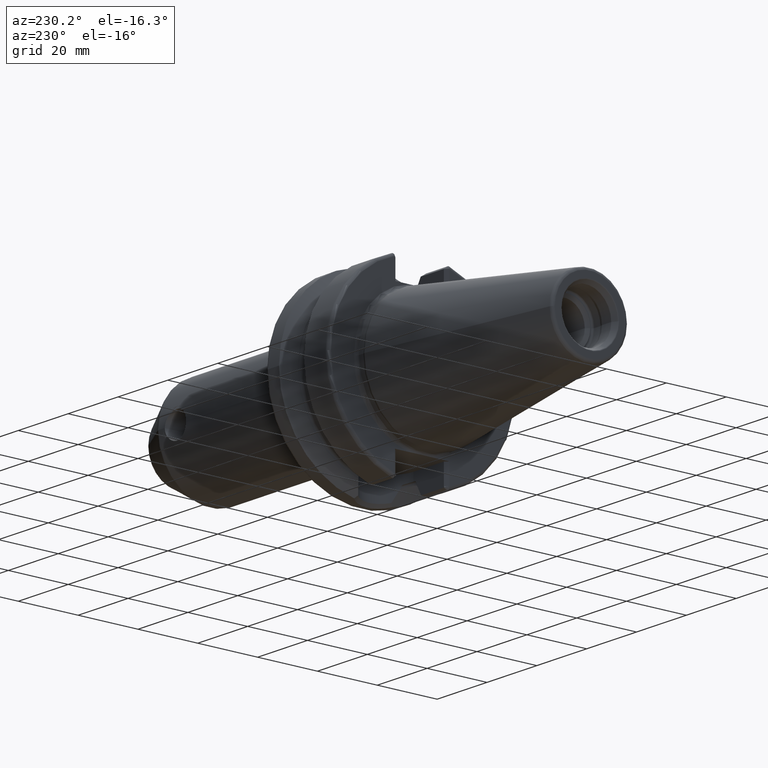
[diagram: clean part render]
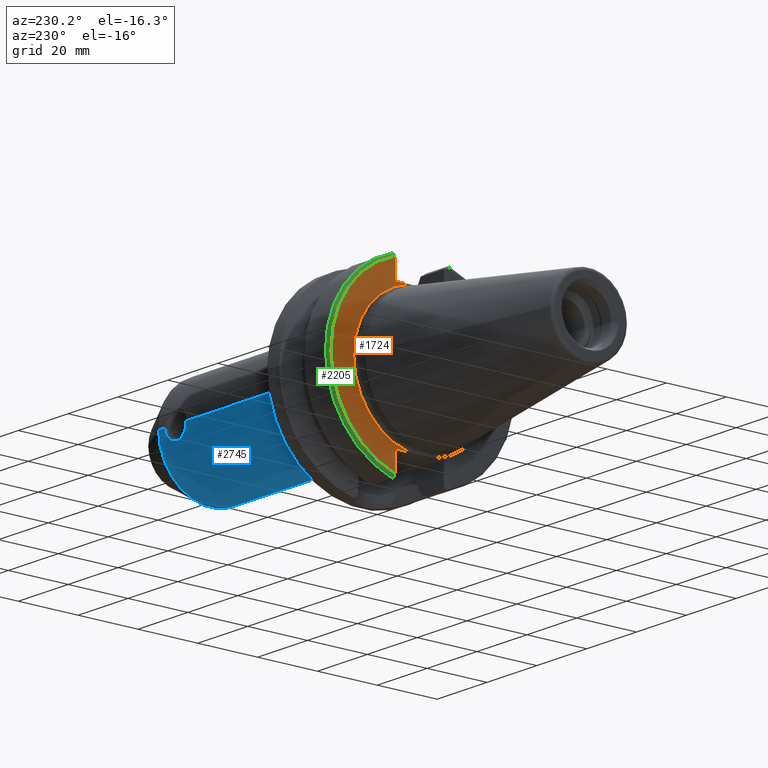
[diagram: same view with three faces highlighted in distinct colors, each labeled with its STEP entity id]
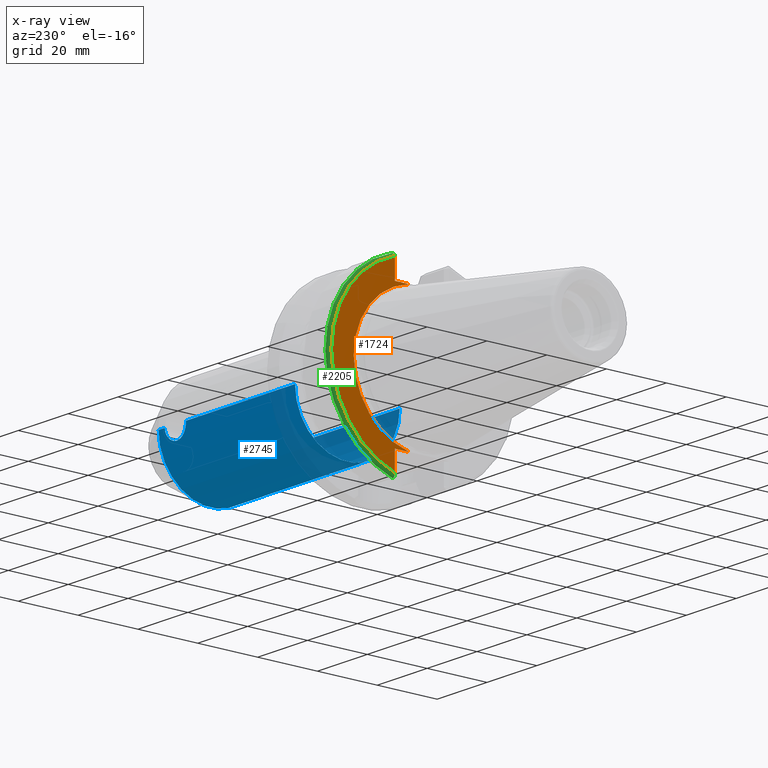
[diagram: x-ray of the same camera — body ghosted, the three highlighted faces saturated]
A machine part, auxiliary view with three faces highlighted in distinct colors.
The next image is the same camera in x-ray (body ghosted, the three faces saturated) — at least one of them is partly hidden behind the body in this view.
Their STEP definitions:

[orange] entity #1724 — the highlighted planar face has unit normal (1, 0, 0).
#96=CARTESIAN_POINT('',(2.E0,0.E0,0.E0));
#97=DIRECTION('',(-1.E0,0.E0,0.E0));
#98=DIRECTION('',(0.E0,1.E0,0.E0));
#99=AXIS2_PLACEMENT_3D('',#96,#97,#98);
#127=DIRECTION('',(2.137863157138E-6,2.138092596513E-6,9.999999999954E-1));
#128=VECTOR('',#127,6.649288203884E0);
#129=CARTESIAN_POINT('',(1.999985784732E0,9.094985783206E0,-2.909928820385E1));
#130=LINE('',#129,#128);
#131=DIRECTION('',(-4.462834027332E-6,-4.463945839096E-6,9.999999999801E-1));
#132=VECTOR('',#131,6.649296399125E0);
#133=CARTESIAN_POINT('',(2.E0,9.095E0,2.245E1));
#134=LINE('',#133,#132);
#592=CARTESIAN_POINT('',(2.E0,0.E0,0.E0));
#593=DIRECTION('',(-1.E0,0.E0,0.E0));
#594=DIRECTION('',(0.E0,2.983190614061E-1,9.544662055839E-1));
#595=AXIS2_PLACEMENT_3D('',#592,#593,#594);
#688=DIRECTION('',(0.E0,1.E0,0.E0));
#689=VECTOR('',#688,4.706022328605E0);
#690=CARTESIAN_POINT('',(2.E0,4.388977671395E0,2.245E1));
#691=LINE('',#690,#689);
#709=CARTESIAN_POINT('',(2.E0,0.E0,0.E0));
#710=DIRECTION('',(1.E0,0.E0,0.E0));
#711=DIRECTION('',(0.E0,1.E0,0.E0));
#712=AXIS2_PLACEMENT_3D('',#709,#710,#711);
#746=DIRECTION('',(0.E0,-1.E0,0.E0));
#747=VECTOR('',#746,4.706022328605E0);
#748=CARTESIAN_POINT('',(2.E0,9.095E0,-2.245E1));
#749=LINE('',#748,#747);
#1368=CARTESIAN_POINT('',(2.E0,2.2875E1,0.E0));
#1370=VERTEX_POINT('',#1368);
#1438=CARTESIAN_POINT('',(2.E0,4.388977671395E0,2.245E1));
#1439=VERTEX_POINT('',#1438);
#1446=CARTESIAN_POINT('',(2.E0,4.388977671395E0,-2.245E1));
#1447=VERTEX_POINT('',#1446);
#1484=CARTESIAN_POINT('',(2.E0,9.095027762300E0,2.909928051090E1));
#1486=VERTEX_POINT('',#1484);
#1488=CARTESIAN_POINT('',(2.E0,9.095E0,2.245E1));
#1489=VERTEX_POINT('',#1488);
#1498=CARTESIAN_POINT('',(1.999985784732E0,9.094985783206E0,-2.909928820385E1));
#1499=CARTESIAN_POINT('',(2.E0,9.095E0,-2.245E1));
#1500=VERTEX_POINT('',#1498);
#1501=VERTEX_POINT('',#1499);
#1704=CARTESIAN_POINT('',(2.E0,0.E0,0.E0));
#1705=DIRECTION('',(1.E0,0.E0,0.E0));
#1706=DIRECTION('',(0.E0,-1.E0,0.E0));
#1707=AXIS2_PLACEMENT_3D('',#1704,#1705,#1706);
#1708=PLANE('',#1707);
#1710=ORIENTED_EDGE('',*,*,#1709,.F.);
#1712=ORIENTED_EDGE('',*,*,#1711,.F.);
#1714=ORIENTED_EDGE('',*,*,#1713,.F.);
#1716=ORIENTED_EDGE('',*,*,#1715,.F.);
#1718=ORIENTED_EDGE('',*,*,#1717,.F.);
#1719=ORIENTED_EDGE('',*,*,#1690,.T.);
#1721=ORIENTED_EDGE('',*,*,#1720,.F.);
#1722=EDGE_LOOP('',(#1710,#1712,#1714,#1716,#1718,#1719,#1721));
#1723=FACE_OUTER_BOUND('',#1722,.F.);
#1724=ADVANCED_FACE('',(#1723),#1708,.F.);
#100=CIRCLE('',#99,2.2875E1);
#596=CIRCLE('',#595,3.04875E1);
#713=CIRCLE('',#712,2.2875E1);
#1690=EDGE_CURVE('',#1370,#1447,#100,.T.);
#1709=EDGE_CURVE('',#1500,#1501,#130,.T.);
#1711=EDGE_CURVE('',#1486,#1500,#596,.T.);
#1713=EDGE_CURVE('',#1489,#1486,#134,.T.);
#1715=EDGE_CURVE('',#1439,#1489,#691,.T.);
#1717=EDGE_CURVE('',#1370,#1439,#713,.T.);
#1720=EDGE_CURVE('',#1501,#1447,#749,.T.);

[blue] entity #2745 — the highlighted cylindrical surface (partial cylindrical patch) has radius 17.5 mm, axis along (1, 0, 0).
#866=CARTESIAN_POINT('',(8.425E1,1.75E1,0.E0));
#885=CARTESIAN_POINT('',(7.575E1,1.75E1,0.E0));
#897=CARTESIAN_POINT('',(8.673205080757E1,0.E0,0.E0));
#898=DIRECTION('',(-1.E0,0.E0,0.E0));
#899=DIRECTION('',(0.E0,1.E0,0.E0));
#900=AXIS2_PLACEMENT_3D('',#897,#898,#899);
#902=DIRECTION('',(-1.E0,0.E0,4.034151754499E-12));
#903=VECTOR('',#902,2.482050807569E0);
#904=CARTESIAN_POINT('',(8.673205080757E1,1.75E1,-1.001189805416E-11));
#905=LINE('',#904,#903);
#906=CARTESIAN_POINT('',(7.575E1,1.75E1,0.E0));
#907=CARTESIAN_POINT('',(7.575E1,1.75E1,-2.630986276924E-1));
#908=CARTESIAN_POINT('',(7.579779236715E1,1.748829489316E1,-7.797226782291E-1));
#909=CARTESIAN_POINT('',(7.601263147147E1,1.743739143317E1,-1.538974771418E0));
#910=CARTESIAN_POINT('',(7.635888722048E1,1.736064352877E1,-2.237868772450E0));
#911=CARTESIAN_POINT('',(7.682924810143E1,1.726714249867E1,-2.865443424691E0));
#912=CARTESIAN_POINT('',(7.739978380493E1,1.717040285892E1,-3.391860839723E0));
#913=CARTESIAN_POINT('',(7.806658831094E1,1.708112476445E1,-3.811719789764E0));
#914=CARTESIAN_POINT('',(7.879518488029E1,1.701310309570E1,-4.101288769297E0));
#915=CARTESIAN_POINT('',(7.958219781585E1,1.697506044587E1,-4.254216190995E0));
#916=CARTESIAN_POINT('',(8.037065801892E1,1.697397944520E1,-4.258472365784E0));
#917=CARTESIAN_POINT('',(8.115715074592E1,1.700977166236E1,-4.114902082096E0));
#918=CARTESIAN_POINT('',(8.189069574541E1,1.707621592845E1,-3.833467037302E0));
#919=CARTESIAN_POINT('',(8.256902133798E1,1.716556030316E1,-3.416257508203E0));
#920=CARTESIAN_POINT('',(8.315050211192E1,1.726333490602E1,-2.888529076122E0));
#921=CARTESIAN_POINT('',(8.363023285031E1,1.735830546424E1,-2.256422851047E0));
#922=CARTESIAN_POINT('',(8.398258458200E1,1.743627427346E1,-1.552534894864E0));
#923=CARTESIAN_POINT('',(8.420141052954E1,1.748809697551E1,-7.864492584348E-1));
#924=CARTESIAN_POINT('',(8.425E1,1.75E1,-2.653901059503E-1));
#925=CARTESIAN_POINT('',(8.425E1,1.75E1,0.E0));
#927=DIRECTION('',(-1.E0,0.E0,5.637030524903E-14));
#928=VECTOR('',#927,4.375E1);
#929=CARTESIAN_POINT('',(7.575E1,1.75E1,0.E0));
#930=LINE('',#929,#928);
#931=CARTESIAN_POINT('',(3.2E1,0.E0,0.E0));
#932=DIRECTION('',(1.E0,0.E0,0.E0));
#933=DIRECTION('',(0.E0,-1.E0,0.E0));
#934=AXIS2_PLACEMENT_3D('',#931,#932,#933);
#936=DIRECTION('',(-1.E0,0.E0,-2.279350507412E-13));
#937=VECTOR('',#936,5.473205080757E1);
#938=CARTESIAN_POINT('',(8.673205080757E1,-1.75E1,1.000748212438E-11));
#939=LINE('',#938,#937);
#1527=VERTEX_POINT('',#866);
#1528=VERTEX_POINT('',#885);
#1535=CARTESIAN_POINT('',(3.2E1,-1.75E1,0.E0));
#1536=CARTESIAN_POINT('',(3.2E1,1.75E1,0.E0));
#1537=VERTEX_POINT('',#1535);
#1538=VERTEX_POINT('',#1536);
#1539=CARTESIAN_POINT('',(8.673205080757E1,1.75E1,0.E0));
#1540=CARTESIAN_POINT('',(8.673205080757E1,-1.75E1,0.E0));
#1541=VERTEX_POINT('',#1539);
#1542=VERTEX_POINT('',#1540);
#2731=CARTESIAN_POINT('',(2.335E1,0.E0,0.E0));
#2732=DIRECTION('',(1.E0,0.E0,0.E0));
#2733=DIRECTION('',(0.E0,-1.E0,0.E0));
#2734=AXIS2_PLACEMENT_3D('',#2731,#2732,#2733);
#2735=CYLINDRICAL_SURFACE('',#2734,1.75E1);
#2736=ORIENTED_EDGE('',*,*,#2722,.F.);
#2737=ORIENTED_EDGE('',*,*,#2697,.T.);
#2739=ORIENTED_EDGE('',*,*,#2738,.F.);
#2740=ORIENTED_EDGE('',*,*,#2693,.T.);
#2741=ORIENTED_EDGE('',*,*,#2663,.F.);
#2742=ORIENTED_EDGE('',*,*,#2690,.F.);
#2743=EDGE_LOOP('',(#2736,#2737,#2739,#2740,#2741,#2742));
#2744=FACE_OUTER_BOUND('',#2743,.F.);
#2745=ADVANCED_FACE('',(#2744),#2735,.T.);
#901=CIRCLE('',#900,1.75E1);
#926=B_SPLINE_CURVE_WITH_KNOTS('',3,(#906,#907,#908,#909,#910,#911,#912,#913,
#914,#915,#916,#917,#918,#919,#920,#921,#922,#923,#924,#925),.UNSPECIFIED.,.F.,
.F.,(4,1,1,1,1,1,1,1,1,1,1,1,1,1,1,1,1,4),(0.E0,5.882352941176E-2,
1.176470588235E-1,1.764705882353E-1,2.352941176471E-1,2.941176470588E-1,
3.529411764706E-1,4.117647058824E-1,4.705882352941E-1,5.294117647059E-1,
5.882352941176E-1,6.470588235294E-1,7.058823529412E-1,7.647058823529E-1,
8.235294117647E-1,8.823529411765E-1,9.411764705882E-1,1.E0),.UNSPECIFIED.);
#935=CIRCLE('',#934,1.75E1);
#2663=EDGE_CURVE('',#1537,#1538,#935,.T.);
#2690=EDGE_CURVE('',#1542,#1537,#939,.T.);
#2693=EDGE_CURVE('',#1528,#1538,#930,.T.);
#2697=EDGE_CURVE('',#1541,#1527,#905,.T.);
#2722=EDGE_CURVE('',#1541,#1542,#901,.T.);
#2738=EDGE_CURVE('',#1528,#1527,#926,.T.);

[green] entity #2205 — the highlighted toroidal blend (fillet) surface has major radius 30.4875 mm and minor (blend) radius 1 mm.
#228=CARTESIAN_POINT('',(3.E0,0.E0,0.E0));
#229=DIRECTION('',(-1.E0,0.E0,0.E0));
#230=DIRECTION('',(0.E0,2.983189831898E-1,9.544662300305E-1));
#231=AXIS2_PLACEMENT_3D('',#228,#229,#230);
#576=CARTESIAN_POINT('',(2.999999997734E0,9.052776400559E0,-3.015808496187E1));
#577=CARTESIAN_POINT('',(2.931534903981E0,9.052812497807E0,-3.015807412629E1));
#578=CARTESIAN_POINT('',(2.790930333101E0,9.053893030365E0,-3.014309601841E1));
#579=CARTESIAN_POINT('',(2.577680867074E0,9.059670739939E0,-3.006831316068E1));
#580=CARTESIAN_POINT('',(2.379122961844E0,9.068290399113E0,-2.993980731602E1));
#581=CARTESIAN_POINT('',(2.211396248706E0,9.078496481978E0,-2.976350519345E1));
#582=CARTESIAN_POINT('',(2.087184923784E0,9.087603638745E0,-2.955183251506E1));
#583=CARTESIAN_POINT('',(2.014374036950E0,9.093739351075E0,-2.932192619109E1));
#584=CARTESIAN_POINT('',(1.999985784732E0,9.095112793048E0,-2.917217137670E1));
#585=CARTESIAN_POINT('',(1.999985784732E0,9.094985783206E0,-2.909928820385E1));
#587=CARTESIAN_POINT('',(3.E0,9.095027762304E0,2.909928051092E1));
#588=DIRECTION('',(0.E0,9.544659454175E-1,-2.983198938025E-1));
#589=DIRECTION('',(-1.E0,-4.138911435803E-12,-1.324096388089E-11));
#590=AXIS2_PLACEMENT_3D('',#587,#588,#589);
#592=CARTESIAN_POINT('',(2.E0,0.E0,0.E0));
#593=DIRECTION('',(-1.E0,0.E0,0.E0));
#594=DIRECTION('',(0.E0,2.983190614061E-1,9.544662055839E-1));
#595=AXIS2_PLACEMENT_3D('',#592,#593,#594);
#1484=CARTESIAN_POINT('',(2.E0,9.095027762300E0,2.909928051090E1));
#1485=CARTESIAN_POINT('',(3.E0,9.393347656107E0,3.005374645633E1));
#1486=VERTEX_POINT('',#1484);
#1487=VERTEX_POINT('',#1485);
#1498=CARTESIAN_POINT('',(1.999985784732E0,9.094985783206E0,-2.909928820385E1));
#1500=VERTEX_POINT('',#1498);
#1502=VERTEX_POINT('',#576);
#2192=CARTESIAN_POINT('',(3.E0,0.E0,0.E0));
#2193=DIRECTION('',(1.E0,0.E0,0.E0));
#2194=DIRECTION('',(0.E0,-1.E0,0.E0));
#2195=AXIS2_PLACEMENT_3D('',#2192,#2193,#2194);
#2196=TOROIDAL_SURFACE('',#2195,3.04875E1,1.E0);
#2198=ORIENTED_EDGE('',*,*,#2197,.F.);
#2199=ORIENTED_EDGE('',*,*,#1874,.F.);
#2201=ORIENTED_EDGE('',*,*,#2200,.F.);
#2202=ORIENTED_EDGE('',*,*,#1711,.T.);
#2203=EDGE_LOOP('',(#2198,#2199,#2201,#2202));
#2204=FACE_OUTER_BOUND('',#2203,.F.);
#2205=ADVANCED_FACE('',(#2204),#2196,.T.);
#232=CIRCLE('',#231,3.14875E1);
#586=B_SPLINE_CURVE_WITH_KNOTS('',3,(#576,#577,#578,#579,#580,#581,#582,#583,
#584,#585),.UNSPECIFIED.,.F.,.F.,(4,1,1,1,1,1,1,4),(0.E0,1.428571428571E-1,
2.857142857143E-1,4.285714285714E-1,5.714285714286E-1,7.142857142857E-1,
8.571428571429E-1,1.E0),.UNSPECIFIED.);
#591=CIRCLE('',#590,1.E0);
#596=CIRCLE('',#595,3.04875E1);
#1711=EDGE_CURVE('',#1486,#1500,#596,.T.);
#1874=EDGE_CURVE('',#1487,#1502,#232,.T.);
#2197=EDGE_CURVE('',#1502,#1500,#586,.T.);
#2200=EDGE_CURVE('',#1486,#1487,#591,.T.);